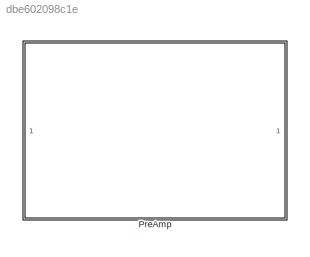
MODEL slx_dbe602098c1e
KIND library
CONFIG AbsTol = auto
CONFIG EnableMultiTasking = off
CONFIG FixedStep = auto
CONFIG MaxStep = auto
CONFIG MinStep = auto
CONFIG RelTol = 1e-3
CONFIG SampleTimeConstraint = Unconstrained
CONFIG SolverName = VariableStepAuto
CONFIG StartTime = 0.0
CONFIG StopTime = 10.0
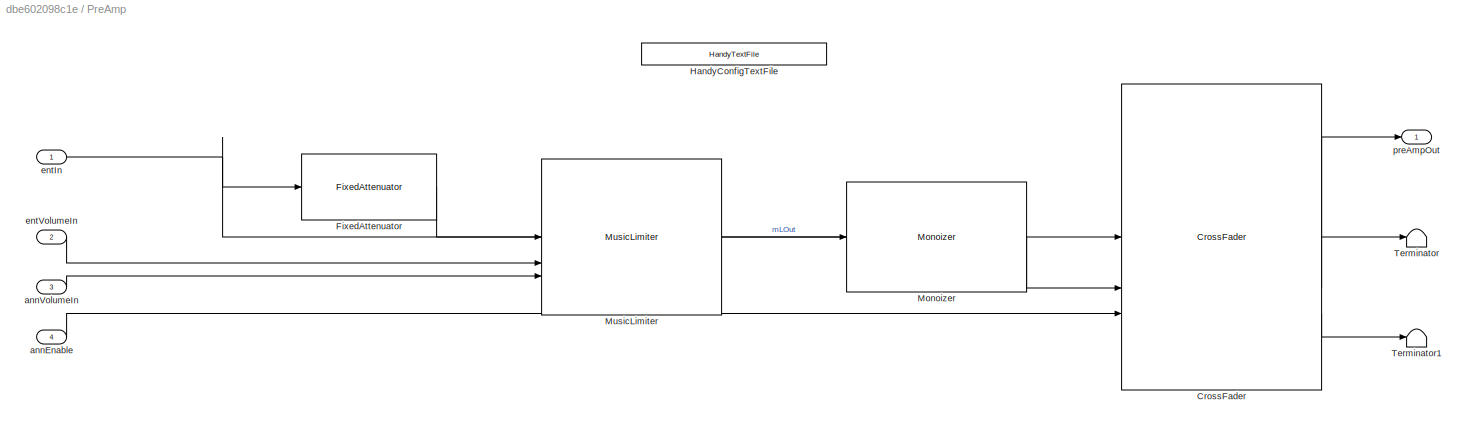
BLOCK [SubSystem] PreAmp
BLOCK [Reference] PreAmp/CrossFader  REF=CrossFaderLib/CrossFader
  SourceBlock = CrossFaderLib/CrossFader
  SourceType = Crossfader
BLOCK [Reference] PreAmp/FixedAttenuator  REF=FixedAttenuatorLib/FixedAttenuator
  SourceBlock = FixedAttenuatorLib/FixedAttenuator
BLOCK [Reference] PreAmp/HandyConfigTextFile  REF=HandyTextFile/HandyTextFile
  SourceBlock = HandyTextFile/HandyTextFile
  SourceProductName = Bose Talaria
  SourceType = Talaria Handy Text File
BLOCK [Reference] PreAmp/Monoizer  REF=MonoizerLib/Monoizer
  SourceBlock = MonoizerLib/Monoizer
  SourceType = Monoizer
BLOCK [Reference] PreAmp/MusicLimiter  REF=MusicLimiterLib/MusicLimiter
  SourceBlock = MusicLimiterLib/MusicLimiter
  SourceType = MusicLimiter
BLOCK [Terminator] PreAmp/Terminator
BLOCK [Terminator] PreAmp/Terminator1
BLOCK [Inport] PreAmp/annEnable
  Port = 4
BLOCK [Inport] PreAmp/annVolumeIn
  Port = 3
BLOCK [Inport] PreAmp/entIn
BLOCK [Inport] PreAmp/entVolumeIn
  Port = 2
BLOCK [Outport] PreAmp/preAmpOut
LINE PreAmp/CrossFader:1 -> PreAmp/preAmpOut:1
LINE PreAmp/CrossFader:2 -> PreAmp/Terminator:1
LINE PreAmp/CrossFader:3 -> PreAmp/Terminator1:1
LINE PreAmp/FixedAttenuator:1 -> PreAmp/MusicLimiter:1
LINE PreAmp/Monoizer:1 -> PreAmp/CrossFader:2
LINE PreAmp/MusicLimiter:1 -> PreAmp/Monoizer:1
LINE PreAmp/annEnable:1 -> PreAmp/CrossFader:3
LINE PreAmp/annVolumeIn:1 -> PreAmp/MusicLimiter:3
NET PreAmp/entIn:1 -> PreAmp/CrossFader:1, PreAmp/FixedAttenuator:1
LINE PreAmp/entVolumeIn:1 -> PreAmp/MusicLimiter:2
note: NET lines group one-source signal fan-out (src -> all destinations, sorted); 1:1 wires keep LINE
